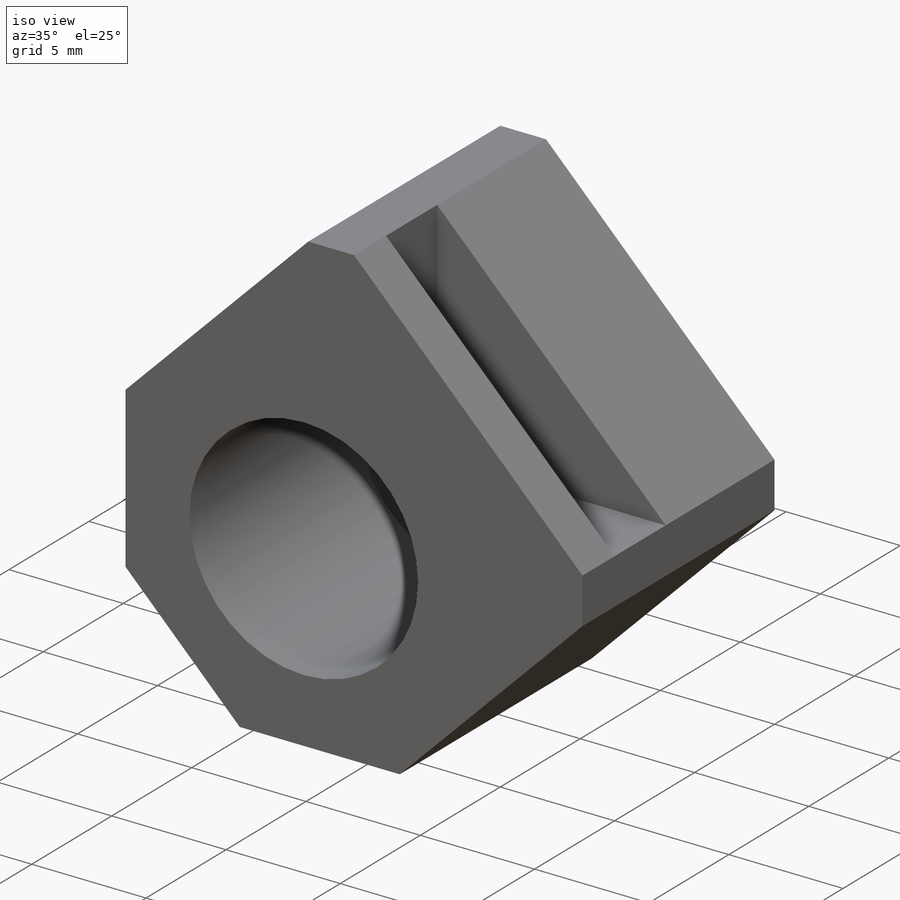
[diagram: iso view]
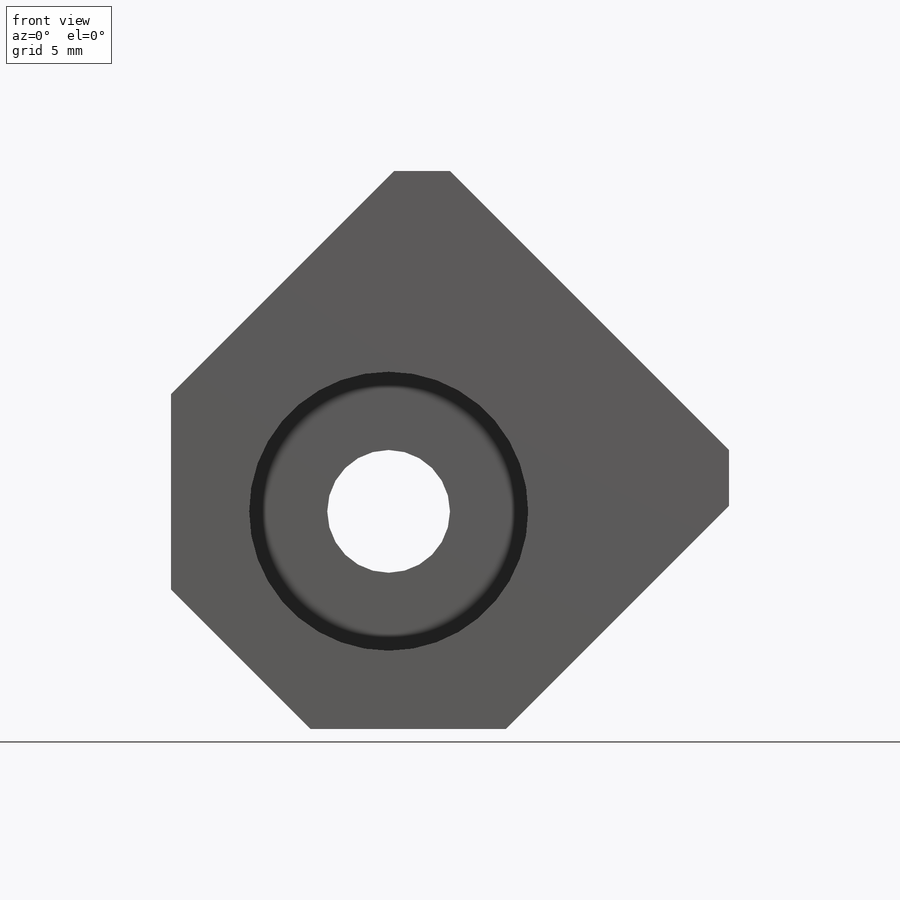
[diagram: front view]
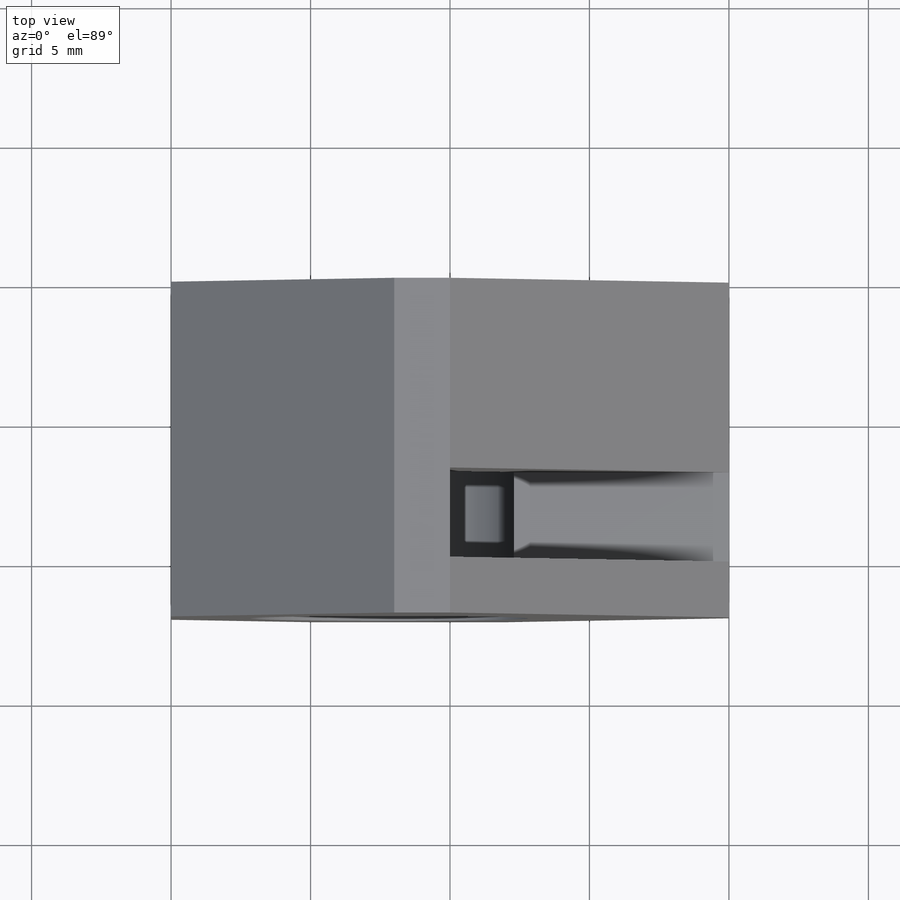
[diagram: top view]
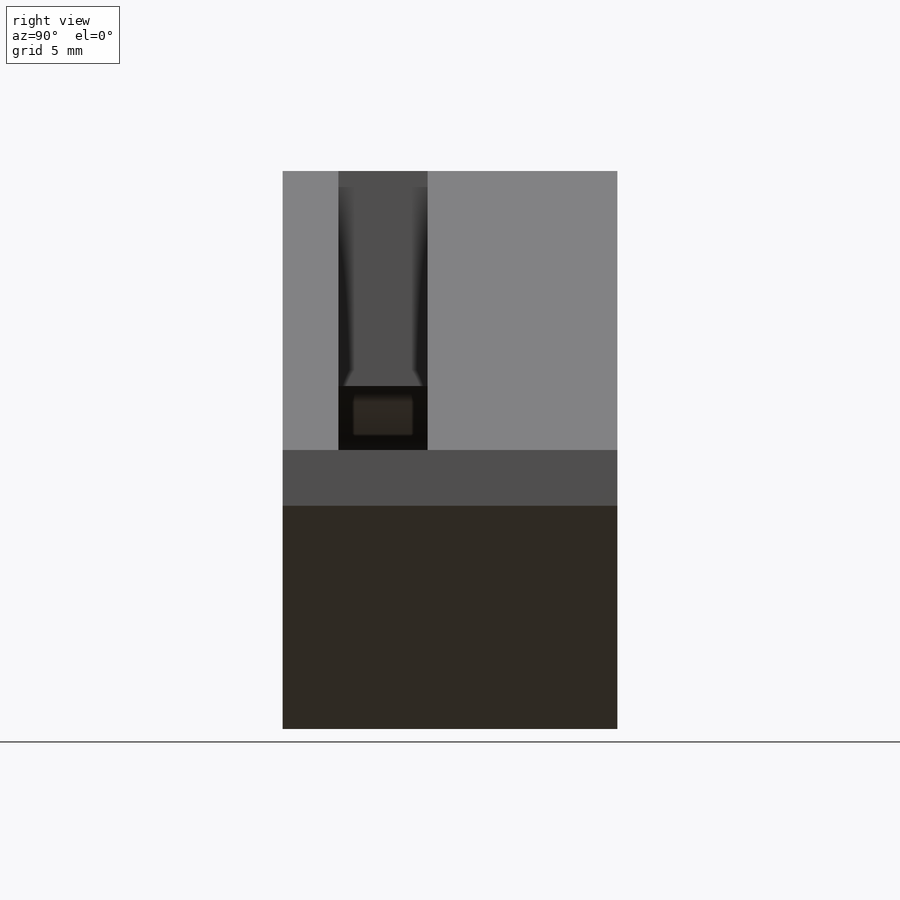
[diagram: right view]
SOLIDWORKS PART (.sldprt)
format: sldprt  version: not decoded by parser v0  size: 187,392 bytes
history: native  units: mm
features: sketch x5, cut_extrude x4, plane x3, chamfer x3, material x1, extrude x1 (+8 scaffold rows collapsed)
feature tree (25):
  scaffold x8  (default folders/planes/origin — collapsed)
  material  "Material <not specified>"
  plane  "Plan de face"
  plane  "Plan de dessus"
  plane  "Plan de droite"
  sketch  "Esquisse1"  dims[D1=20.0mm D2=20.0mm]
  extrude  "Boss.-Extru.1"  Depth=12mm
  chamfer  "Chanfrein1"  Distance=10mm Angle=45deg
  sketch  "Esquisse2"
  cut_extrude  "Enlèv. mat.-Extru.1"  Depth=3.2mm
  sketch  "Esquisse3"  dims[D1=4.4mm]
  cut_extrude  "Enlèv. mat.-Extru.2"  [1 undecoded]
  sketch  "Esquisse4"  dims[D1=10.0mm]
  cut_extrude  "Enlèv. mat.-Extru.3"  Depth=10.5mm
  chamfer  "Chanfrein2"  Distance=5mm Angle=45deg
  chamfer  "Chanfrein3"  Distance=8mm Angle=45deg
  sketch  "Sketch1"  dims[D1=12.0mm]
  cut_extrude  "Cut-Extrude1"  Depth=0.5mm
decode coverage: 11 of 13 modeling features carry decoded parameters
note: 1 parameter value undecoded
note: suppression state not decoded; provenance and decode notes live in map.json
